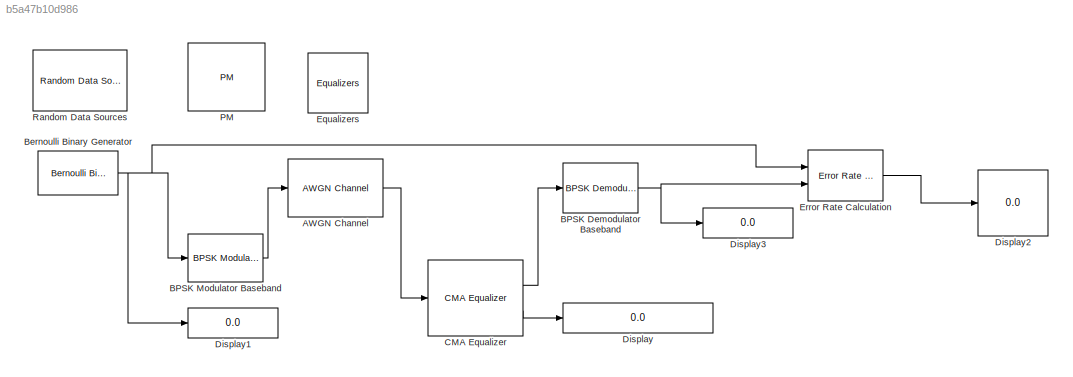
MODEL slx_b5a47b10d986
KIND model
CONFIG AbsTol = auto
CONFIG EnableMultiTasking = off
CONFIG FixedStep = auto
CONFIG MaxStep = auto
CONFIG MinStep = auto
CONFIG RelTol = 1e-3
CONFIG SampleTimeConstraint = Unconstrained
CONFIG Solver = VariableStepDiscrete
CONFIG SolverName = VariableStepDiscrete
CONFIG StartTime = 0.0
CONFIG StopTime = inf
BLOCK [Reference] AWGN Channel  REF=commchan3/AWGN
Channel
  Ports = [1, 1]
  SourceBlock = commchan3/AWGN\nChannel
  SourceProductBaseCode = CM
  SourceProductName = Communications System Toolbox
  SourceType = AWGN Channel
  UserDataPersistent = on
BLOCK [Reference] BPSK Demodulator Baseband  REF=commdigbbndpm3/BPSK
Demodulator
Baseband
  Ports = [1, 1]
  SourceBlock = commdigbbndpm3/BPSK\nDemodulator\nBaseband
  SourceProductBaseCode = CM
  SourceProductName = Communications System Toolbox
  SourceType = BPSK Demodulator Baseband
BLOCK [Reference] BPSK Modulator Baseband  REF=commdigbbndpm3/BPSK
Modulator
Baseband
  Ports = [1, 1]
  SourceBlock = commdigbbndpm3/BPSK\nModulator\nBaseband
  SourceProductBaseCode = CM
  SourceProductName = Communications System Toolbox
  SourceType = BPSK Modulator Baseband
BLOCK [Reference] Bernoulli Binary Generator  REF=commrandsrc3/Bernoulli Binary
Generator
  Ports = [0, 1]
  SourceBlock = commrandsrc3/Bernoulli Binary\nGenerator
  SourceProductBaseCode = CM
  SourceProductName = Communications System Toolbox
  SourceType = Bernoulli Binary Generator
BLOCK [Reference] CMA Equalizer  REF=commeq2/CMA Equalizer
  Ports = [1, 2]
  SourceBlock = commeq2/CMA Equalizer
  SourceProductBaseCode = CM
  SourceProductName = Communications System Toolbox
  SourceType = CMA Equalizer
BLOCK [Display] Display
  Decimation = 1
  Ports = [1]
BLOCK [Display] Display1
  Decimation = 1
  Ports = [1]
BLOCK [Display] Display2
  Decimation = 1
  Ports = [1]
BLOCK [Display] Display3
  Decimation = 1
  Ports = [1]
BLOCK [Reference] Equalizers  REF=commlibv2/Equalizers
  Ports = []
  SourceBlock = commlibv2/Equalizers
  SourceProductBaseCode = CM
  SourceProductName = Communications System Toolbox
  SourceType = Equalizers
BLOCK [Reference] Error Rate Calculation  REF=commsink2/Error Rate
Calculation
  Ports = [2, 1]
  SourceBlock = commsink2/Error Rate\nCalculation
  SourceProductBaseCode = CM
  SourceProductName = Communications System Toolbox
  SourceType = Error Rate Calculation
BLOCK [Reference] PM  REF=commhdlmod/PM
  Ports = []
  SourceBlock = commhdlmod/PM
  SourceProductBaseCode = CM
  SourceProductName = Communications System Toolbox
  SourceType = PM
BLOCK [Reference] Random Data Sources  REF=commsource2/Random Data Sources
  Ports = []
  SourceBlock = commsource2/Random Data Sources
  SourceProductBaseCode = CM
  SourceProductName = Communications System Toolbox
LINE AWGN Channel:1 -> CMA Equalizer:1
NET BPSK Demodulator Baseband:1 -> Display3:1, Error Rate Calculation:2
LINE BPSK Modulator Baseband:1 -> AWGN Channel:1
NET Bernoulli Binary Generator:1 -> BPSK Modulator Baseband:1, Display1:1, Error Rate Calculation:1
LINE CMA Equalizer:1 -> BPSK Demodulator Baseband:1
LINE CMA Equalizer:2 -> Display:1
LINE Error Rate Calculation:1 -> Display2:1
note: NET lines group one-source signal fan-out (src -> all destinations, sorted); 1:1 wires keep LINE
